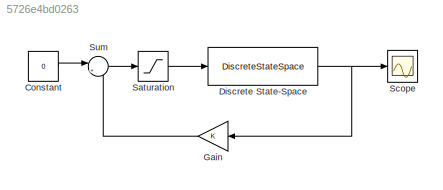
MODEL slx_5726e4bd0263
KIND model
CONFIG AbsTol = auto
CONFIG EnableMultiTasking = off
CONFIG FixedStep = auto
CONFIG MaxStep = auto
CONFIG MinStep = auto
CONFIG RelTol = 1e-3
CONFIG SampleTimeConstraint = Unconstrained
CONFIG SolverName = VariableStepAuto
CONFIG StartTime = 0.0
CONFIG StopTime = Tfinal
BLOCK [Constant] Constant
  Value = 0
BLOCK [DiscreteStateSpace] Discrete State-Space
  A = sysD.A
  B = sysD.B
  C = sysD.C
  D = sysD.D
  InitialCondition = X0
  SampleTime = Ts
BLOCK [Gain] Gain
  Gain = K
  Multiplication = Matrix(K*u)
BLOCK [Saturate] Saturation
  LowerLimit = -Vmax
  UpperLimit = Vmax
BLOCK [Scope] Scope
  Floating = off
  NumInputPorts = 1
  Ports = [1]
  ScopeSpecificationString = Simulink.scopes.TimeScopeBlockCfg('CurrentConfiguration', extmgr.ConfigurationSet(extmgr.Configuration('Core','General UI',true),extmgr.Configuration('Core','Source UI',true),extmgr.Configuration('Sources','WiredSimulink',true,'DataLoggingVariableName','out','DataLogging',true,'DataLoggingSaveFormat','Array'),extmgr.Configuration('Visuals','Time Domain',true,'SerializedDisplays',{struct('MinYLimRe...<+1513ch>
BLOCK [Sum] Sum
  Inputs = |+-
  Ports = [2, 1]
LINE Constant:1 -> Sum:1
NET Discrete State-Space:1 -> Gain:1, Scope:1
LINE Gain:1 -> Sum:2
LINE Saturation:1 -> Discrete State-Space:1
LINE Sum:1 -> Saturation:1
note: NET lines group one-source signal fan-out (src -> all destinations, sorted); 1:1 wires keep LINE
